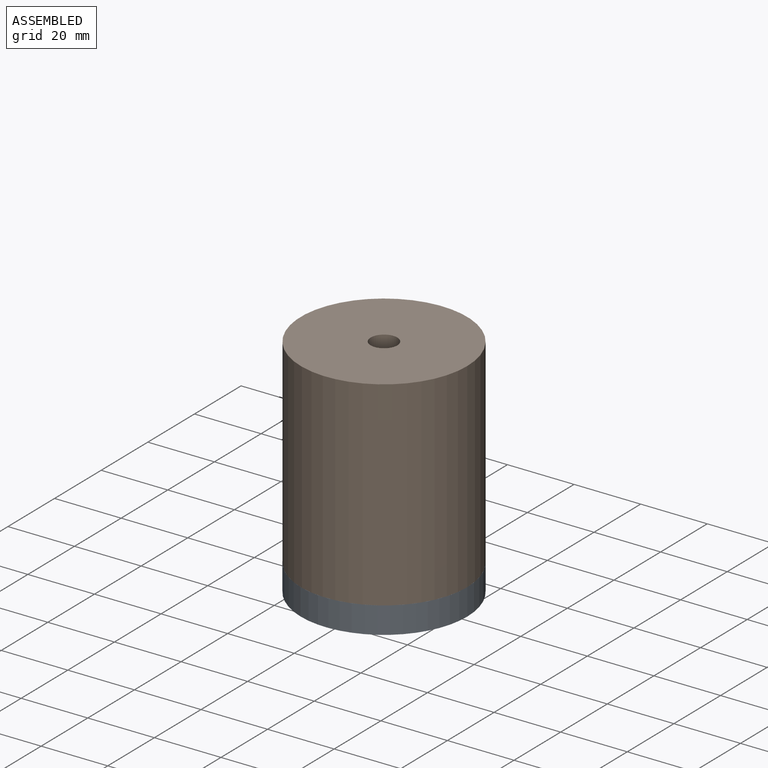
[diagram: assembled view]
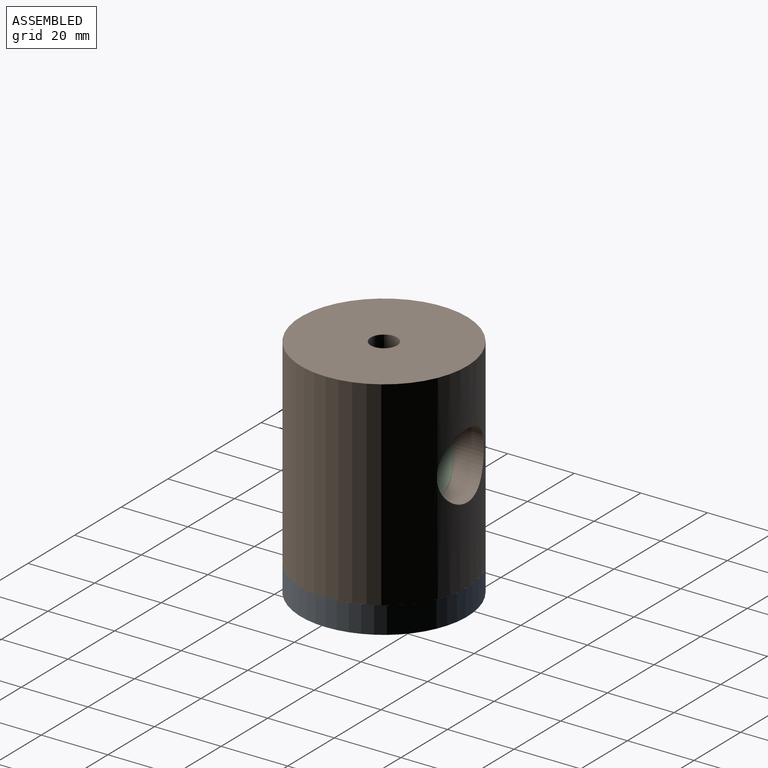
[diagram: assembled view, second angle]
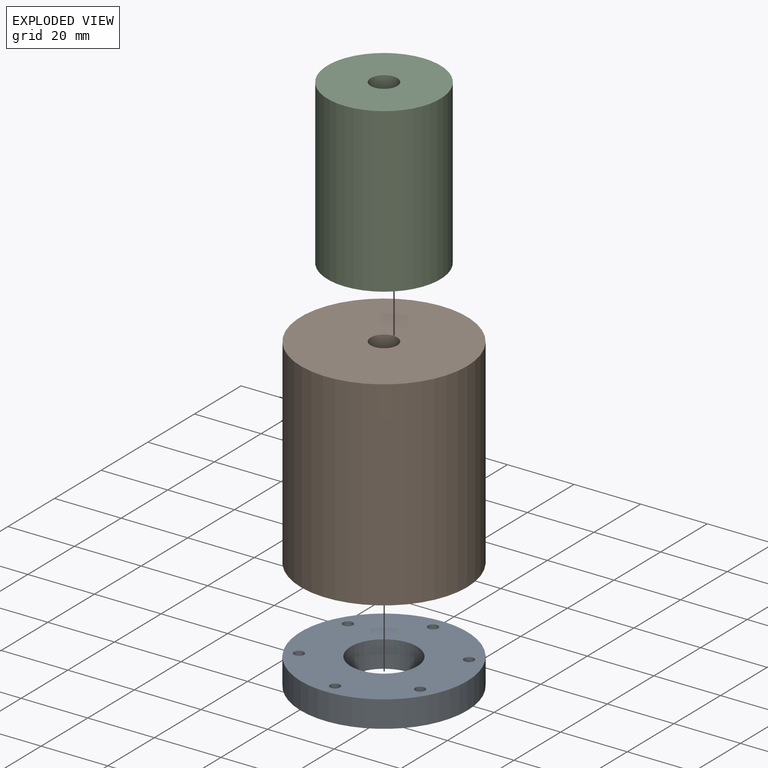
[diagram: exploded view]
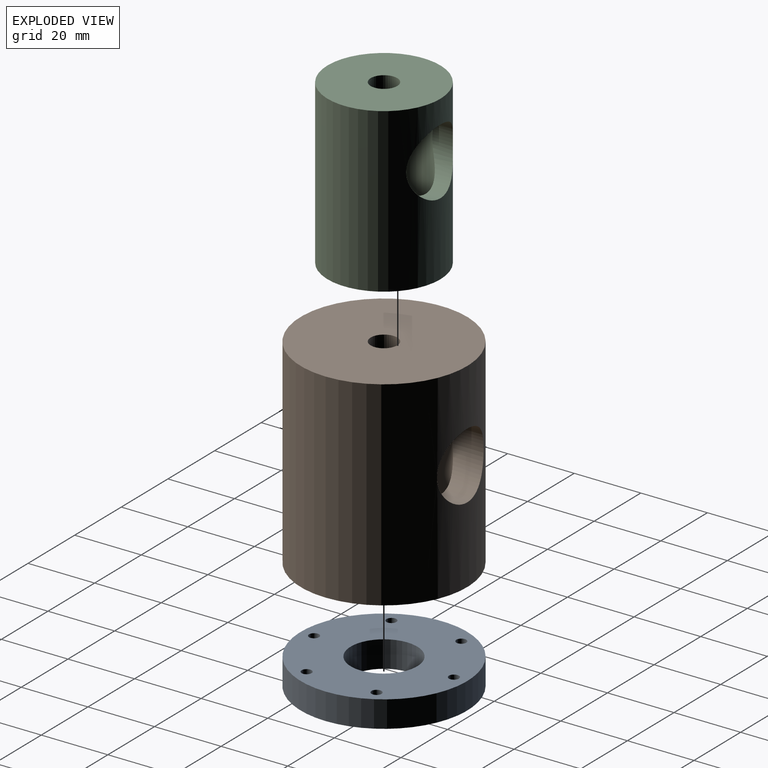
[diagram: exploded view, second angle]
ASSEMBLY  parts=3 mates=2
PART A: 10 faces, bbox 50x50x8 mm
  f0: cylinder r=10mm len=20mm, axis (0,0,-1), area 502.7mm2, adj f2,f3
  f1: cylinder r=25mm len=50mm, axis (0,0,-1), area 1256.6mm2, adj f2,f3
  f2: plane 50x50mm, normal (0,0,1), area 1606.9mm2, adj f0,f1,f4,f5,f6,f7,f8,f9
  f3: plane 50x50mm, normal (0,0,-1), area 1606.9mm2, adj f0,f1,f4,f5,f6,f7,f8,f9
  f4: cylinder r=1.5mm len=8mm, axis (0,0,1), area 75.4mm2, adj f2,f3
  f5: cylinder r=1.5mm len=8mm, axis (0,0,1), area 75.4mm2, adj f2,f3
  f6: cylinder r=1.5mm len=8mm, axis (0,0,1), area 75.4mm2, adj f2,f3
  f7: cylinder r=1.5mm len=8mm, axis (0,0,1), area 75.4mm2, adj f2,f3
  f8: cylinder r=1.5mm len=8mm, axis (0,0,1), area 75.4mm2, adj f2,f3
  f9: cylinder r=1.5mm len=8mm, axis (0,0,1), area 75.4mm2, adj f2,f3
PART B: 20 faces, bbox 50x50x60 mm
  f0: cylinder r=4mm len=10mm, axis (0,0,-1), area 251.3mm2, adj f2,f5
  f1: cylinder r=25mm len=60mm, axis (0,0,-1), area 8783.4mm2, adj f2,f3,f6,f7
  f2: plane 50x50mm, normal (0,0,1), area 1913.2mm2, adj f0,f1
  f3: plane 50x50mm, normal (0,0,-1), area 1013.2mm2, adj f1,f4,f8,f10,f12,f14,f16,f18
  f4: cylinder r=17mm len=50mm, axis (0,0,-1), area 4680.2mm2, adj f3,f5,f6,f7
  f5: plane 34x34mm, normal (0,0,-1), area 857.7mm2, adj f0,f4
  f6: cylinder r=10mm len=20mm, axis (0,-1,0), area 537.3mm2, adj f1,f4
  f7: cylinder r=10mm len=20mm, axis (1,0,0), area 537.3mm2, adj f1,f4
  f8: cylinder r=1.5mm len=20mm, axis (0,0,-1), area 188.5mm2, adj f3,f9
  f9: plane 3x3mm, normal (0,0,-1), area 7.1mm2, adj f8
  f10: cylinder r=1.5mm len=20mm, axis (0,0,-1), area 188.5mm2, adj f3,f11
  f11: plane 3x3mm, normal (0,0,-1), area 7.1mm2, adj f10
  f12: cylinder r=1.5mm len=20mm, axis (0,0,-1), area 188.5mm2, adj f3,f13
  f13: plane 3x3mm, normal (0,0,-1), area 7.1mm2, adj f12
  f14: cylinder r=1.5mm len=20mm, axis (0,0,-1), area 188.5mm2, adj f3,f15
  f15: plane 3x3mm, normal (0,0,-1), area 7.1mm2, adj f14
  f16: cylinder r=1.5mm len=20mm, axis (0,0,-1), area 188.5mm2, adj f3,f17
  f17: plane 3x3mm, normal (0,0,-1), area 7.1mm2, adj f16
  f18: cylinder r=1.5mm len=20mm, axis (0,0,-1), area 188.5mm2, adj f3,f19
  f19: plane 3x3mm, normal (0,0,-1), area 7.1mm2, adj f18
PART C: 7 faces, bbox 33.9x33.9x49 mm
  f0: cylinder r=16.95mm len=49mm, axis (0,0,-1), area 4887.3mm2, adj f1,f2,f5
  f1: plane 33.9x33.9mm, normal (0,0,1), area 852.3mm2, adj f0,f6
  f2: plane 33.9x33.9mm, normal (0,0,-1), area 411.7mm2, adj f0,f3
  f3: cylinder r=12.5mm len=42mm, axis (0,0,-1), area 2949.9mm2, adj f2,f4,f5
  f4: plane 25x25mm, normal (0,0,-1), area 440.6mm2, adj f3,f6
  f5: cylinder r=10mm len=20mm, axis (1,0,0), area 326.9mm2, adj f0,f3
  f6: cylinder r=4mm len=8mm, axis (0,0,-1), area 175.9mm2, adj f1,f4
PLACE A rot(axis=(-1,0,0),180deg) t=(-9.19,-45.52,-4.73)mm
PLACE B t=(-9.19,-45.52,-4.73)mm
PLACE C rot(axis=(0,0,-1),90deg) t=(-9.19,-45.52,-3.73)mm
MATE revolute C.f6 <-> B.f0  axis (0,0,1) through (-9.19,-45.52,45.27)mm
MATE fastened B.f10 <-> A.f5  axis (0,0,-1) through (-9.19,-66.52,-4.73)mm
